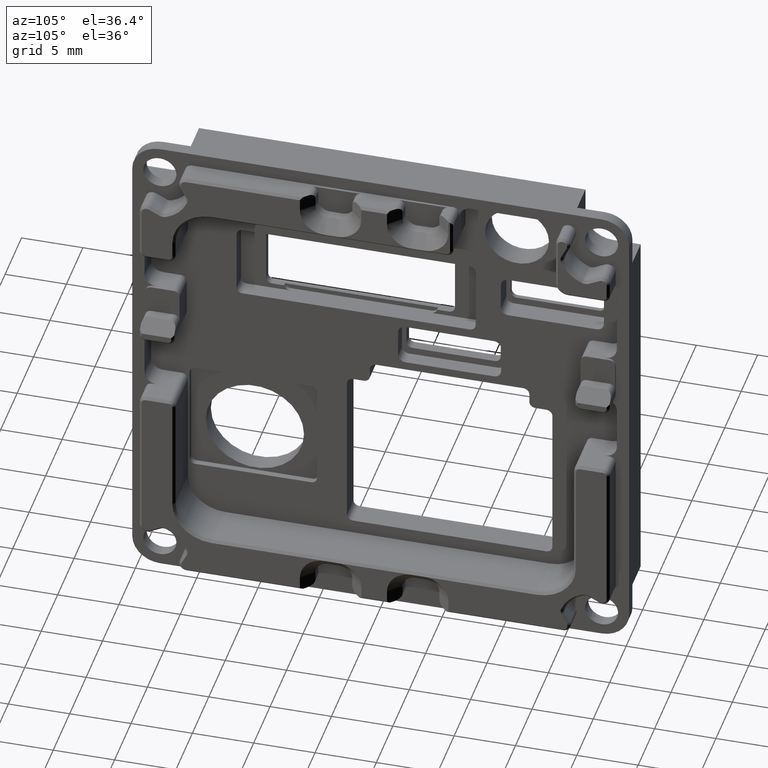
[diagram: clean part render]
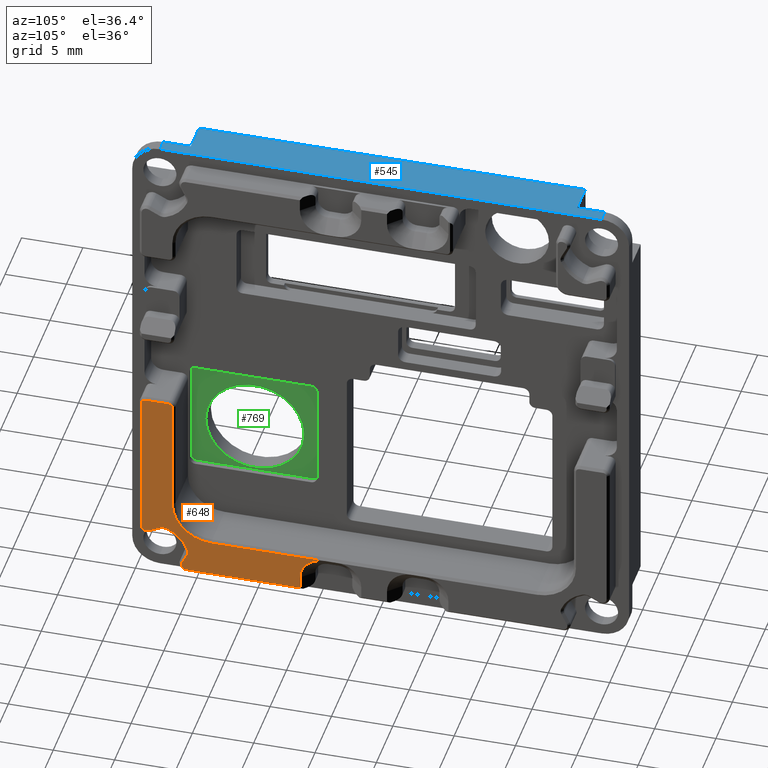
[diagram: same view with three faces highlighted in distinct colors, each labeled with its STEP entity id]
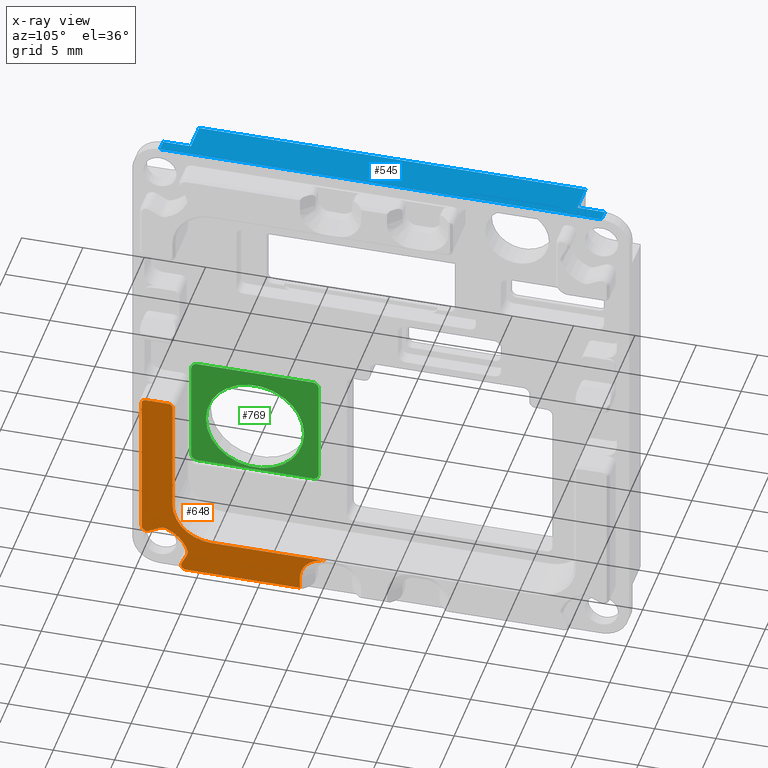
[diagram: x-ray of the same camera — body ghosted, the three highlighted faces saturated]
A machine part, auxiliary view with three faces highlighted in distinct colors.
The next image is the same camera in x-ray (body ghosted, the three faces saturated) — at least one of them is partly hidden behind the body in this view.
Their STEP definitions:

[orange] entity #648 — the highlighted planar face has unit normal (1, 0, 0).
#648=ADVANCED_FACE('',(#1073),#4129,.T.);
#1073=FACE_OUTER_BOUND('',#1537,.F.);
#1537=EDGE_LOOP('',(#2567,#2568,#2569,#2570,#2571,#2572,#2573,#2574,#2575,
#2576,#2577,#2578,#2579,#2580,#2581,#2582,#2583,#2584));
#2567=ORIENTED_EDGE('',*,*,#7306,.T.);
#2568=ORIENTED_EDGE('',*,*,#7305,.T.);
#2569=ORIENTED_EDGE('',*,*,#7307,.F.);
#2570=ORIENTED_EDGE('',*,*,#7233,.F.);
#2571=ORIENTED_EDGE('',*,*,#7234,.F.);
#2572=ORIENTED_EDGE('',*,*,#7235,.F.);
#2573=ORIENTED_EDGE('',*,*,#7236,.T.);
#2574=ORIENTED_EDGE('',*,*,#7237,.T.);
#2575=ORIENTED_EDGE('',*,*,#7238,.T.);
#2576=ORIENTED_EDGE('',*,*,#7239,.F.);
#2577=ORIENTED_EDGE('',*,*,#7240,.F.);
#2578=ORIENTED_EDGE('',*,*,#7241,.F.);
#2579=ORIENTED_EDGE('',*,*,#7242,.F.);
#2580=ORIENTED_EDGE('',*,*,#7243,.T.);
#2581=ORIENTED_EDGE('',*,*,#7244,.F.);
#2582=ORIENTED_EDGE('',*,*,#7245,.T.);
#2583=ORIENTED_EDGE('',*,*,#7246,.T.);
#2584=ORIENTED_EDGE('',*,*,#7249,.T.);
#4129=PLANE('',#10412);
#6493=CIRCLE('',#10176,0.399999999999998);
#6494=CIRCLE('',#10177,0.700000000000001);
#6495=CIRCLE('',#10178,2.94999999999998);
#6496=CIRCLE('',#10179,0.699999999999997);
#6497=CIRCLE('',#10180,0.400000000000001);
#6498=CIRCLE('',#10181,0.300000000000002);
#6499=CIRCLE('',#10182,0.300000000000001);
#6500=CIRCLE('',#10183,3.2);
#6531=CIRCLE('',#10214,1.99999999999999);
#6532=CIRCLE('',#10215,1.99999999999999);
#7233=EDGE_CURVE('',#9462,#9948,#8128,.T.);
#7234=EDGE_CURVE('',#9461,#9462,#6493,.T.);
#7235=EDGE_CURVE('',#9460,#9461,#8129,.T.);
#7236=EDGE_CURVE('',#9460,#9459,#6494,.T.);
#7237=EDGE_CURVE('',#9459,#9458,#6495,.T.);
#7238=EDGE_CURVE('',#9458,#9457,#6496,.T.);
#7239=EDGE_CURVE('',#9456,#9457,#8130,.T.);
#7240=EDGE_CURVE('',#9455,#9456,#6497,.T.);
#7241=EDGE_CURVE('',#9454,#9455,#8131,.T.);
#7242=EDGE_CURVE('',#9453,#9454,#6498,.T.);
#7243=EDGE_CURVE('',#9453,#9452,#8132,.T.);
#7244=EDGE_CURVE('',#9451,#9452,#6499,.T.);
#7245=EDGE_CURVE('',#9451,#9450,#8133,.T.);
#7246=EDGE_CURVE('',#9450,#9449,#6500,.T.);
#7249=EDGE_CURVE('',#9449,#9444,#8136,.T.);
#7305=EDGE_CURVE('',#9398,#9397,#6531,.T.);
#7306=EDGE_CURVE('',#9444,#9398,#6532,.T.);
#7307=EDGE_CURVE('',#9948,#9397,#8162,.T.);
#8128=LINE('',#14431,#8892);
#8129=LINE('',#14433,#8893);
#8130=LINE('',#14437,#8894);
#8131=LINE('',#14439,#8895);
#8132=LINE('',#14441,#8896);
#8133=LINE('',#14443,#8897);
#8136=LINE('',#14447,#8900);
#8162=LINE('',#14505,#8926);
#8892=VECTOR('',#11513,9.28441779902427);
#8893=VECTOR('',#11516,0.949279560919562);
#8894=VECTOR('',#11523,0.973524715068766);
#8895=VECTOR('',#11526,12.0481556162485);
#8896=VECTOR('',#11529,1.8999999999923);
#8897=VECTOR('',#11532,9.44462172095864);
#8900=VECTOR('',#11537,9.19999986692327);
#8926=VECTOR('',#11627,1.00000000339419);
#9397=VERTEX_POINT('',#13136);
#9398=VERTEX_POINT('',#13137);
#9444=VERTEX_POINT('',#13183);
#9449=VERTEX_POINT('',#13188);
#9450=VERTEX_POINT('',#13189);
#9451=VERTEX_POINT('',#13190);
#9452=VERTEX_POINT('',#13191);
#9453=VERTEX_POINT('',#13192);
#9454=VERTEX_POINT('',#13193);
#9455=VERTEX_POINT('',#13194);
#9456=VERTEX_POINT('',#13195);
#9457=VERTEX_POINT('',#13196);
#9458=VERTEX_POINT('',#13197);
#9459=VERTEX_POINT('',#13198);
#9460=VERTEX_POINT('',#13199);
#9461=VERTEX_POINT('',#13200);
#9462=VERTEX_POINT('',#13201);
#9948=VERTEX_POINT('',#13687);
#10176=AXIS2_PLACEMENT_3D('',#14432,#11514,#11515);
#10177=AXIS2_PLACEMENT_3D('',#14434,#11517,#11518);
#10178=AXIS2_PLACEMENT_3D('',#14435,#11519,#11520);
#10179=AXIS2_PLACEMENT_3D('',#14436,#11521,#11522);
#10180=AXIS2_PLACEMENT_3D('',#14438,#11524,#11525);
#10181=AXIS2_PLACEMENT_3D('',#14440,#11527,#11528);
#10182=AXIS2_PLACEMENT_3D('',#14442,#11530,#11531);
#10183=AXIS2_PLACEMENT_3D('',#14444,#11533,#11534);
#10214=AXIS2_PLACEMENT_3D('',#14503,#11623,#11624);
#10215=AXIS2_PLACEMENT_3D('',#14504,#11625,#11626);
#10412=AXIS2_PLACEMENT_3D('',#15044,#12362,#12363);
#11513=DIRECTION('',(0.,1.,0.));
#11514=DIRECTION('',(1.,0.,0.));
#11515=DIRECTION('',(0.,-0.894388519529675,0.447290930081882));
#11516=DIRECTION('',(0.,-0.447290930081827,-0.894388519529703));
#11517=DIRECTION('',(1.,0.,0.));
#11518=DIRECTION('',(0.,0.894388519529731,-0.447290930081771));
#11519=DIRECTION('',(1.,0.,0.));
#11520=DIRECTION('',(0.,0.93615948108347,0.351575633367172));
#11521=DIRECTION('',(1.,0.,0.));
#11522=DIRECTION('',(0.,0.361213000704528,0.932483333964758));
#11523=DIRECTION('',(0.,0.894388601210457,0.447290766755588));
#11524=DIRECTION('',(1.,0.,0.));
#11525=DIRECTION('',(0.,-1.,0.));
#11526=DIRECTION('',(0.,0.,-1.));
#11527=DIRECTION('',(1.,0.,0.));
#11528=DIRECTION('',(0.,0.,1.));
#11529=DIRECTION('',(0.,1.,0.));
#11530=DIRECTION('',(1.,0.,0.));
#11531=DIRECTION('',(0.,1.,0.));
#11532=DIRECTION('',(0.,0.,-1.));
#11533=DIRECTION('',(1.,0.,0.));
#11534=DIRECTION('',(0.,-1.,0.));
#11537=DIRECTION('',(0.,1.,0.));
#11623=DIRECTION('',(1.,0.,0.));
#11624=DIRECTION('',(0.,-0.865033719234513,0.501713727724591));
#11625=DIRECTION('',(1.,0.,0.));
#11626=DIRECTION('',(0.,0.,1.));
#11627=DIRECTION('',(0.,1.69049484947314E-09,1.));
#12362=DIRECTION('',(1.,0.,0.));
#12363=DIRECTION('',(0.,-1.,0.));
#13136=CARTESIAN_POINT('',(2.00000000000001,-6.0500000303533,-17.9499957187476));
#13137=CARTESIAN_POINT('',(2.00000000000001,-5.78006746882318,-16.9465682666746));
#13183=CARTESIAN_POINT('',(2.00000000000001,-4.05000003035134,-15.9499957644005));
#13188=CARTESIAN_POINT('',(2.00000000000004,-13.2499998972735,-15.9499958912282));
#13189=CARTESIAN_POINT('',(2.00000000000001,-16.449999897276,-12.7499958912285));
#13190=CARTESIAN_POINT('',(2.00000000000001,-16.4499998972745,-3.30537417026901));
#13191=CARTESIAN_POINT('',(2.,-16.7499998972836,-3.00537417026899));
#13192=CARTESIAN_POINT('',(1.99999999999934,-18.6499998972759,-3.00537417027503));
#13193=CARTESIAN_POINT('',(2.,-18.9499998972755,-3.30537417027414));
#13194=CARTESIAN_POINT('',(2.,-18.949999897277,-15.353529786523));
#13195=CARTESIAN_POINT('',(2.00000000000001,-18.3710835905748,-15.7112852270073));
#13196=CARTESIAN_POINT('',(2.,-17.5003741824206,-15.2758366107487));
#13197=CARTESIAN_POINT('',(2.00000000000001,-16.9344215451985,-15.2491702978207));
#13198=CARTESIAN_POINT('',(2.00000000000001,-15.2383294280806,-16.9628480145835));
#13199=CARTESIAN_POINT('',(2.00000000000001,-15.2675691011682,-17.5220546089978));
#13200=CARTESIAN_POINT('',(2.,-15.6921732388796,-18.3710793501084));
#13201=CARTESIAN_POINT('',(2.00000000000001,-15.3344178310676,-18.9499957221411));
#13687=CARTESIAN_POINT('',(2.,-6.05000003204336,-18.9499957221405));
#14431=CARTESIAN_POINT('',(2.00000000000001,-15.3344178310676,-18.9499957221411));
#14432=CARTESIAN_POINT('',(2.00000000000001,-15.3344178310677,-18.5499957221411));
#14433=CARTESIAN_POINT('',(2.00000000000001,-15.2675691011682,-17.5220546089978));
#14434=CARTESIAN_POINT('',(2.00000000000001,-15.893641064839,-17.2089509579405));
#14435=CARTESIAN_POINT('',(2.00000000000001,-17.9999998972768,-17.9999961330167));
#14436=CARTESIAN_POINT('',(2.00000000000001,-17.1872706456917,-15.901908631596));
#14437=CARTESIAN_POINT('',(2.00000000000001,-18.3710835905748,-15.7112852270073));
#14438=CARTESIAN_POINT('',(2.00000000000001,-18.549999897277,-15.3535297865231));
#14439=CARTESIAN_POINT('',(2.,-18.9499998972755,-3.30537417027453));
#14440=CARTESIAN_POINT('',(2.,-18.6499998972754,-3.30537417027397));
#14441=CARTESIAN_POINT('',(2.,-18.6499998972759,-3.00537417027457));
#14442=CARTESIAN_POINT('',(2.,-16.7499998972754,-3.30537417026778));
#14443=CARTESIAN_POINT('',(2.,-16.449999897274,-3.3053741702699));
#14444=CARTESIAN_POINT('',(2.00000000000001,-13.2499998972761,-12.7499958912284));
#14447=CARTESIAN_POINT('',(2.00000000000001,-13.2499998972746,-15.9499958912282));
#14503=CARTESIAN_POINT('',(2.00000000000001,-4.05000003035417,-17.9499957221237));
#14504=CARTESIAN_POINT('',(2.00000000000001,-4.05000003035417,-17.9499957221237));
#14505=CARTESIAN_POINT('',(2.00000000000001,-6.05000003204336,-18.9499957221405));
#15044=CARTESIAN_POINT('',(2.,20.2527103260496,20.2527065252185));

[blue] entity #545 — the highlighted planar face has unit normal (0, 0, 1).
#545=ADVANCED_FACE('',(#970),#4074,.T.);
#970=FACE_OUTER_BOUND('',#1430,.F.);
#1430=EDGE_LOOP('',(#2028,#2029,#2030,#2031,#2032,#2033,#2034,#2035));
#2028=ORIENTED_EDGE('',*,*,#6946,.F.);
#2029=ORIENTED_EDGE('',*,*,#6959,.T.);
#2030=ORIENTED_EDGE('',*,*,#6979,.F.);
#2031=ORIENTED_EDGE('',*,*,#6964,.F.);
#2032=ORIENTED_EDGE('',*,*,#6972,.T.);
#2033=ORIENTED_EDGE('',*,*,#6962,.T.);
#2034=ORIENTED_EDGE('',*,*,#6945,.F.);
#2035=ORIENTED_EDGE('',*,*,#6728,.T.);
#4074=PLANE('',#10309);
#6728=EDGE_CURVE('',#9828,#9827,#7802,.T.);
#6945=EDGE_CURVE('',#9828,#9623,#7907,.T.);
#6946=EDGE_CURVE('',#9622,#9827,#7908,.T.);
#6959=EDGE_CURVE('',#9622,#9611,#7919,.T.);
#6962=EDGE_CURVE('',#9609,#9623,#7921,.T.);
#6964=EDGE_CURVE('',#9608,#9607,#7922,.T.);
#6972=EDGE_CURVE('',#9608,#9609,#7926,.T.);
#6979=EDGE_CURVE('',#9607,#9611,#7933,.T.);
#7802=LINE('',#13926,#8566);
#7907=LINE('',#14143,#8671);
#7908=LINE('',#14144,#8672);
#7919=LINE('',#14157,#8683);
#7921=LINE('',#14160,#8685);
#7922=LINE('',#14162,#8686);
#7926=LINE('',#14170,#8690);
#7933=LINE('',#14177,#8697);
#8566=VECTOR('',#10829,31.4999962539123);
#8671=VECTOR('',#11158,2.5);
#8672=VECTOR('',#11159,2.5);
#8683=VECTOR('',#11174,2.24999986304782);
#8685=VECTOR('',#11178,2.24999986304751);
#8686=VECTOR('',#11181,35.999999726089);
#8690=VECTOR('',#11193,1.);
#8697=VECTOR('',#11200,0.999999999999998);
#9607=VERTEX_POINT('',#13346);
#9608=VERTEX_POINT('',#13347);
#9609=VERTEX_POINT('',#13348);
#9611=VERTEX_POINT('',#13350);
#9622=VERTEX_POINT('',#13361);
#9623=VERTEX_POINT('',#13362);
#9827=VERTEX_POINT('',#13566);
#9828=VERTEX_POINT('',#13567);
#10309=AXIS2_PLACEMENT_3D('',#14941,#12156,#12157);
#10829=DIRECTION('',(0.,1.,0.));
#11158=DIRECTION('',(1.,0.,0.));
#11159=DIRECTION('',(-1.,0.,0.));
#11174=DIRECTION('',(0.,1.,0.));
#11178=DIRECTION('',(0.,1.,0.));
#11181=DIRECTION('',(0.,1.,0.));
#11193=DIRECTION('',(-1.,0.,0.));
#11200=DIRECTION('',(-1.,0.,0.));
#12156=DIRECTION('',(0.,0.,1.));
#12157=DIRECTION('',(0.,1.,0.));
#13346=CARTESIAN_POINT('',(0.,18.0000000114153,20.2499963021));
#13347=CARTESIAN_POINT('',(0.,-17.9999998972827,20.2499963020999));
#13348=CARTESIAN_POINT('',(-0.999999999999998,-17.9999998972827,20.2499963020999));
#13350=CARTESIAN_POINT('',(-0.999999999999997,18.0000000114153,20.2499963020999));
#13361=CARTESIAN_POINT('',(-0.999999999999998,15.7499999657561,20.249997518668));
#13362=CARTESIAN_POINT('',(-0.999999999999998,-15.7500000342382,20.2499975507936));
#13566=CARTESIAN_POINT('',(-3.5,15.7499999657559,20.2499963021001));
#13567=CARTESIAN_POINT('',(-3.5,-15.7499990977178,20.2499981751405));
#13926=CARTESIAN_POINT('',(-3.5,-15.7499962881568,20.2499963020998));
#14143=CARTESIAN_POINT('',(-3.5,-15.7500000342382,20.2499963020998));
#14144=CARTESIAN_POINT('',(-1.,15.7499999657564,20.2499963020998));
#14157=CARTESIAN_POINT('',(-0.999999999999996,15.7499999657555,20.2499963020998));
#14160=CARTESIAN_POINT('',(-0.999999999999998,-17.9999998972857,20.2499963020998));
#14162=CARTESIAN_POINT('',(0.,-17.9999998972857,20.2499963020998));
#14170=CARTESIAN_POINT('',(0.,-17.9999998972857,20.2499963020998));
#14177=CARTESIAN_POINT('',(0.,18.0000001027213,20.2499963021));
#14941=CARTESIAN_POINT('',(0.359999997260888,-18.3599998945466,20.2499963020998));

[green] entity #769 — the highlighted planar face has unit normal (1, 0, 0).
#769=ADVANCED_FACE('',(#1416,#1194),#4192,.T.);
#1194=FACE_OUTER_BOUND('',#1667,.F.);
#1416=FACE_BOUND('',#1666,.F.);
#1666=EDGE_LOOP('',(#3222,#3223));
#1667=EDGE_LOOP('',(#3224,#3225,#3226,#3227,#3228,#3229,#3230,#3231));
#3222=ORIENTED_EDGE('',*,*,#6757,.F.);
#3223=ORIENTED_EDGE('',*,*,#6756,.F.);
#3224=ORIENTED_EDGE('',*,*,#7500,.T.);
#3225=ORIENTED_EDGE('',*,*,#7507,.T.);
#3226=ORIENTED_EDGE('',*,*,#7506,.T.);
#3227=ORIENTED_EDGE('',*,*,#7505,.T.);
#3228=ORIENTED_EDGE('',*,*,#7504,.T.);
#3229=ORIENTED_EDGE('',*,*,#7503,.T.);
#3230=ORIENTED_EDGE('',*,*,#7502,.T.);
#3231=ORIENTED_EDGE('',*,*,#7501,.T.);
#4192=PLANE('',#10533);
#6316=CIRCLE('',#9999,4.);
#6317=CIRCLE('',#10000,4.);
#6571=CIRCLE('',#10254,0.5);
#6572=CIRCLE('',#10255,0.5);
#6573=CIRCLE('',#10256,0.5);
#6574=CIRCLE('',#10257,0.5);
#6756=EDGE_CURVE('',#9802,#9801,#6316,.T.);
#6757=EDGE_CURVE('',#9801,#9802,#6317,.T.);
#7500=EDGE_CURVE('',#9324,#9323,#8317,.T.);
#7501=EDGE_CURVE('',#9322,#9324,#6571,.T.);
#7502=EDGE_CURVE('',#9321,#9322,#8318,.T.);
#7503=EDGE_CURVE('',#9320,#9321,#6572,.T.);
#7504=EDGE_CURVE('',#9319,#9320,#8319,.T.);
#7505=EDGE_CURVE('',#9318,#9319,#6573,.T.);
#7506=EDGE_CURVE('',#9317,#9318,#8320,.T.);
#7507=EDGE_CURVE('',#9323,#9317,#6574,.T.);
#8317=LINE('',#14698,#9081);
#8318=LINE('',#14700,#9082);
#8319=LINE('',#14702,#9083);
#8320=LINE('',#14704,#9084);
#9081=VECTOR('',#11858,9.39999999998616);
#9082=VECTOR('',#11861,8.39999999996348);
#9083=VECTOR('',#11864,9.4000000000016);
#9084=VECTOR('',#11867,8.39999999999418);
#9317=VERTEX_POINT('',#13056);
#9318=VERTEX_POINT('',#13057);
#9319=VERTEX_POINT('',#13058);
#9320=VERTEX_POINT('',#13059);
#9321=VERTEX_POINT('',#13060);
#9322=VERTEX_POINT('',#13061);
#9323=VERTEX_POINT('',#13062);
#9324=VERTEX_POINT('',#13063);
#9801=VERTEX_POINT('',#13540);
#9802=VERTEX_POINT('',#13541);
#9999=AXIS2_PLACEMENT_3D('',#13954,#10859,#10860);
#10000=AXIS2_PLACEMENT_3D('',#13955,#10861,#10862);
#10254=AXIS2_PLACEMENT_3D('',#14699,#11859,#11860);
#10255=AXIS2_PLACEMENT_3D('',#14701,#11862,#11863);
#10256=AXIS2_PLACEMENT_3D('',#14703,#11865,#11866);
#10257=AXIS2_PLACEMENT_3D('',#14705,#11868,#11869);
#10533=AXIS2_PLACEMENT_3D('',#15165,#12604,#12605);
#10859=DIRECTION('',(-1.,0.,0.));
#10860=DIRECTION('',(0.,1.,0.));
#10861=DIRECTION('',(-1.,0.,0.));
#10862=DIRECTION('',(0.,-1.,0.));
#11858=DIRECTION('',(0.,1.,0.));
#11859=DIRECTION('',(-1.,0.,0.));
#11860=DIRECTION('',(0.,-1.,0.));
#11861=DIRECTION('',(0.,0.,1.));
#11862=DIRECTION('',(-1.,0.,0.));
#11863=DIRECTION('',(0.,0.,-1.));
#11864=DIRECTION('',(0.,-1.,0.));
#11865=DIRECTION('',(-1.,0.,0.));
#11866=DIRECTION('',(0.,1.,0.));
#11867=DIRECTION('',(0.,0.,-1.));
#11868=DIRECTION('',(-1.,0.,0.));
#11869=DIRECTION('',(0.,0.,1.));
#12604=DIRECTION('',(1.,0.,0.));
#12605=DIRECTION('',(0.,1.,0.));
#13056=CARTESIAN_POINT('',(-2.5,-5.72199983777368,-2.60537417026383));
#13057=CARTESIAN_POINT('',(-2.5,-5.72199983777275,-11.0053741702654));
#13058=CARTESIAN_POINT('',(-2.5,-6.22199983777324,-11.5053741702724));
#13059=CARTESIAN_POINT('',(-2.5,-15.6219998377748,-11.5053741702724));
#13060=CARTESIAN_POINT('',(-2.5,-16.1219998377706,-11.0053741702527));
#13061=CARTESIAN_POINT('',(-2.5,-16.1219998377728,-2.60537417028922));
#13062=CARTESIAN_POINT('',(-2.5,-6.22199983775957,-2.10537417027383));
#13063=CARTESIAN_POINT('',(-2.5,-15.6219998377457,-2.10537417027444));
#13540=CARTESIAN_POINT('',(-2.5,-14.9219998377725,-7.30537417027289));
#13541=CARTESIAN_POINT('',(-2.5,-6.92199983777246,-7.30537417027289));
#13954=CARTESIAN_POINT('',(-2.5,-10.9219998377725,-7.30537417027289));
#13955=CARTESIAN_POINT('',(-2.5,-10.9219998377725,-7.30537417027289));
#14698=CARTESIAN_POINT('',(-2.5,-15.6219998377457,-2.10537417027501));
#14699=CARTESIAN_POINT('',(-2.5,-15.6219998377719,-2.6053741702733));
#14700=CARTESIAN_POINT('',(-2.5,-16.12199983777,-11.0053741702527));
#14701=CARTESIAN_POINT('',(-2.5,-15.6219998377719,-11.005374170272));
#14702=CARTESIAN_POINT('',(-2.5,-6.22199983777324,-11.5053741702727));
#14703=CARTESIAN_POINT('',(-2.5,-6.22199983777316,-11.0053741702717));
#14704=CARTESIAN_POINT('',(-2.5,-5.72199983777395,-2.60537417025853));
#14705=CARTESIAN_POINT('',(-2.5,-6.22199983777313,-2.60537417027444));
#15165=CARTESIAN_POINT('',(-2.5,-16.2266141551073,-2.00075985293789));